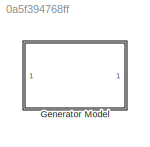
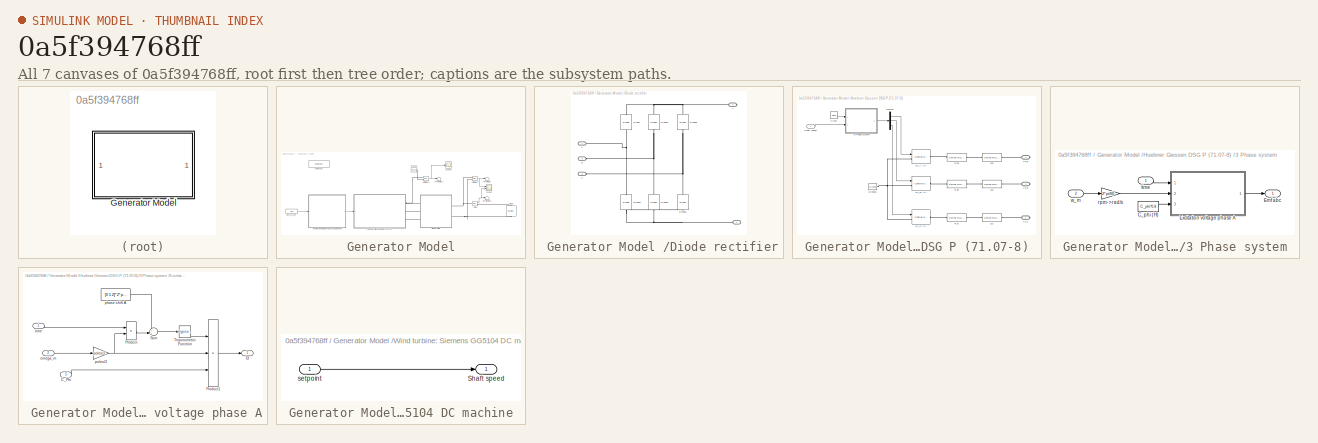
[diagram: thumbnail index - all 7 canvases of the model, root first then tree order]
MODEL slx_0a5f394768ff
KIND model
CONFIG AbsTol = auto
CONFIG EnableMultiTasking = on
CONFIG FixedStep = 1e-6
CONFIG InitFcn = Rs=0.42;                \nLs=0.96e-3;            \nC_phi=92.1952e-3;     \npoles=8;               \nRload=15;
CONFIG MaxStep = 1e-5
CONFIG MinStep = auto
CONFIG RelTol = 1e-5
CONFIG SampleTimeConstraint = Unconstrained
CONFIG SolverName = ode15s
CONFIG StartTime = 0.0
CONFIG StopTime = 0.2
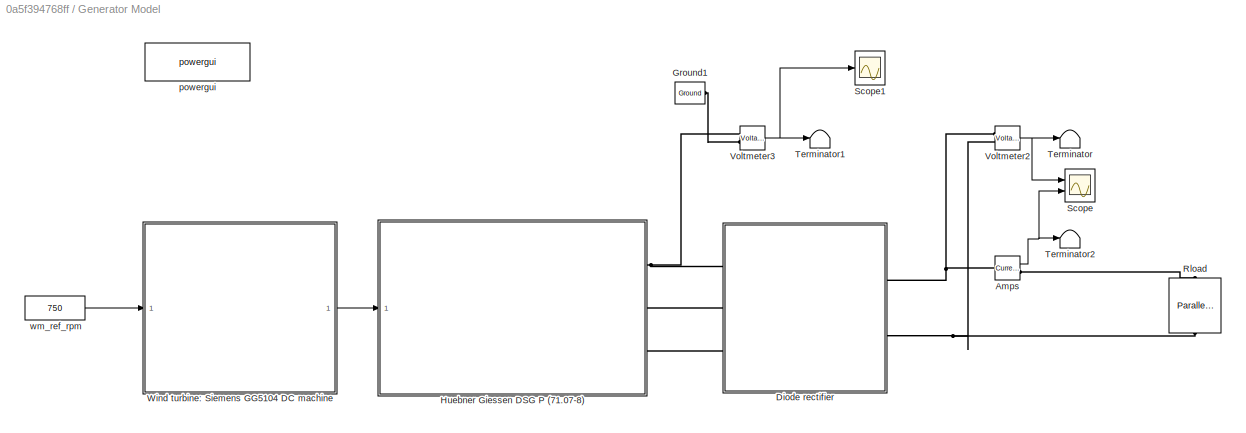
BLOCK [SubSystem]  Generator Model 
  Ports = []
BLOCK [Reference]  Generator Model /Amps  REF=spsCurrentMeasurementLib/Current Measurement
  Ports = [0, 1, 0, 0, 0, 1, 1]
  SourceBlock = spsCurrentMeasurementLib/Current Measurement
  SourceType = Current Measurement
  UserDataPersistent = on
BLOCK [SubSystem]  Generator Model /Diode rectifier
  Ports = [0, 0, 0, 0, 0, 3, 2]
BLOCK [PMIOPort]  Generator Model /Diode rectifier/+
  NameLocation = top
  Port = 2
  Side = Right
BLOCK [PMIOPort]  Generator Model /Diode rectifier/-
  NameLocation = top
  Port = 4
  Side = Right
BLOCK [PMIOPort]  Generator Model /Diode rectifier/A
  Side = Left
BLOCK [PMIOPort]  Generator Model /Diode rectifier/B
  Port = 3
  Side = Left
BLOCK [PMIOPort]  Generator Model /Diode rectifier/C
  Port = 5
  Side = Left
BLOCK [Reference]  Generator Model /Diode rectifier/Diode  REF=spsDiodeLib/Diode
  NameLocation = right
  Ports = [0, 0, 0, 0, 0, 1, 1]
  SourceBlock = spsDiodeLib/Diode
  SourceType = Diode
BLOCK [Reference]  Generator Model /Diode rectifier/Diode1  REF=spsDiodeLib/Diode
  NameLocation = right
  Ports = [0, 0, 0, 0, 0, 1, 1]
  SourceBlock = spsDiodeLib/Diode
  SourceType = Diode
BLOCK [Reference]  Generator Model /Diode rectifier/Diode2  REF=spsDiodeLib/Diode
  NameLocation = right
  Ports = [0, 0, 0, 0, 0, 1, 1]
  SourceBlock = spsDiodeLib/Diode
  SourceType = Diode
BLOCK [Reference]  Generator Model /Diode rectifier/Diode3  REF=spsDiodeLib/Diode
  NameLocation = right
  Ports = [0, 0, 0, 0, 0, 1, 1]
  SourceBlock = spsDiodeLib/Diode
  SourceType = Diode
BLOCK [Reference]  Generator Model /Diode rectifier/Diode4  REF=spsDiodeLib/Diode
  NameLocation = right
  Ports = [0, 0, 0, 0, 0, 1, 1]
  SourceBlock = spsDiodeLib/Diode
  SourceType = Diode
BLOCK [Reference]  Generator Model /Diode rectifier/Diode5  REF=spsDiodeLib/Diode
  NameLocation = right
  Ports = [0, 0, 0, 0, 0, 1, 1]
  SourceBlock = spsDiodeLib/Diode
  SourceType = Diode
BLOCK [Reference]  Generator Model /Ground1  REF=spsGroundLib/Ground
  Ports = [0, 0, 0, 0, 0, 1]
  SourceBlock = spsGroundLib/Ground
  SourceType = Ground
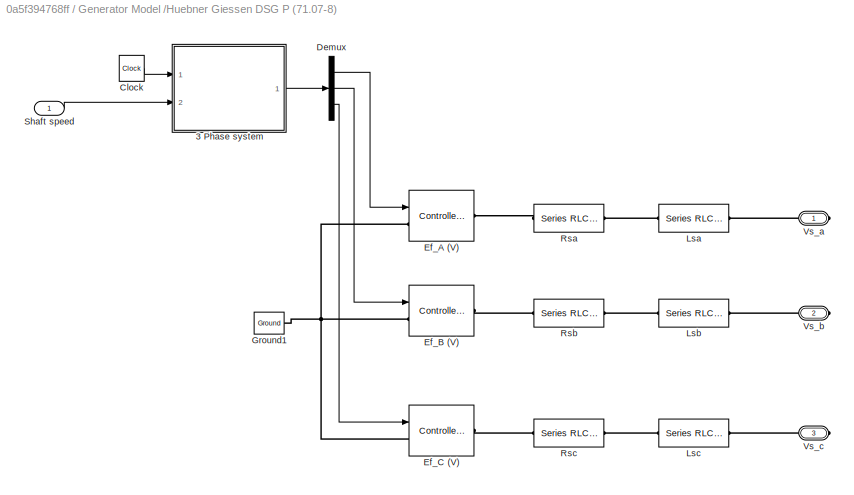
BLOCK [SubSystem]  Generator Model /Huebner Giessen DSG P (71.07-8) 
  Ports = [1, 0, 0, 0, 0, 0, 3]
BLOCK [SubSystem]  Generator Model /Huebner Giessen DSG P (71.07-8) /3 Phase system 
  Ports = [2, 1]
BLOCK [Constant]  Generator Model /Huebner Giessen DSG P (71.07-8) /3 Phase system /C_phi (H)
  Value = C_phi*0.8
  VectorParams1D = off
BLOCK [Outport]  Generator Model /Huebner Giessen DSG P (71.07-8) /3 Phase system /Emf abc 
BLOCK [SubSystem]  Generator Model /Huebner Giessen DSG P (71.07-8) /3 Phase system /Excitation voltage phase A
  Ports = [3, 1]
BLOCK [Inport]  Generator Model /Huebner Giessen DSG P (71.07-8) /3 Phase system /Excitation voltage phase A/C_Phi
  Port = 3
BLOCK [Outport]  Generator Model /Huebner Giessen DSG P (71.07-8) /3 Phase system /Excitation voltage phase A/Ef
BLOCK [Product]  Generator Model /Huebner Giessen DSG P (71.07-8) /3 Phase system /Excitation voltage phase A/Product
  Ports = [2, 1]
  RndMeth = Zero
BLOCK [Product]  Generator Model /Huebner Giessen DSG P (71.07-8) /3 Phase system /Excitation voltage phase A/Product1
  Inputs = 3
  Ports = [3, 1]
  RndMeth = Zero
BLOCK [Sum]  Generator Model /Huebner Giessen DSG P (71.07-8) /3 Phase system /Excitation voltage phase A/Sum
  Inputs = ++|
  Ports = [2, 1]
BLOCK [Trigonometry]  Generator Model /Huebner Giessen DSG P (71.07-8) /3 Phase system /Excitation voltage phase A/Trigonometric Function
  Ports = [1, 1]
BLOCK [Inport]  Generator Model /Huebner Giessen DSG P (71.07-8) /3 Phase system /Excitation voltage phase A/omega_m
  Port = 2
BLOCK [Constant]  Generator Model /Huebner Giessen DSG P (71.07-8) /3 Phase system /Excitation voltage phase A/phase shift A
  Value = [0 1 2]*2*pi/3
BLOCK [Gain]  Generator Model /Huebner Giessen DSG P (71.07-8) /3 Phase system /Excitation voltage phase A/poles//2
  Gain = poles/2
BLOCK [Inport]  Generator Model /Huebner Giessen DSG P (71.07-8) /3 Phase system /Excitation voltage phase A/time
BLOCK [Gain]  Generator Model /Huebner Giessen DSG P (71.07-8) /3 Phase system /rpm->rad//s
  Gain = 2*pi/60
BLOCK [Inport]  Generator Model /Huebner Giessen DSG P (71.07-8) /3 Phase system /time
BLOCK [Inport]  Generator Model /Huebner Giessen DSG P (71.07-8) /3 Phase system /w_m
  Port = 2
BLOCK [Clock]  Generator Model /Huebner Giessen DSG P (71.07-8) /Clock
BLOCK [Demux]  Generator Model /Huebner Giessen DSG P (71.07-8) /Demux
  Outputs = 3
  Ports = [1, 3]
BLOCK [Reference]  Generator Model /Huebner Giessen DSG P (71.07-8) /Ef_A (V)  REF=spsControlledVoltageSourceLib/Controlled Voltage Source
  Ports = [1, 0, 0, 0, 0, 1, 1]
  SourceBlock = spsControlledVoltageSourceLib/Controlled Voltage Source
  SourceType = Controlled Voltage Source
BLOCK [Reference]  Generator Model /Huebner Giessen DSG P (71.07-8) /Ef_B (V)  REF=spsControlledVoltageSourceLib/Controlled Voltage Source
  Ports = [1, 0, 0, 0, 0, 1, 1]
  SourceBlock = spsControlledVoltageSourceLib/Controlled Voltage Source
  SourceType = Controlled Voltage Source
BLOCK [Reference]  Generator Model /Huebner Giessen DSG P (71.07-8) /Ef_C (V)  REF=spsControlledVoltageSourceLib/Controlled Voltage Source
  Ports = [1, 0, 0, 0, 0, 1, 1]
  SourceBlock = spsControlledVoltageSourceLib/Controlled Voltage Source
  SourceType = Controlled Voltage Source
BLOCK [Reference]  Generator Model /Huebner Giessen DSG P (71.07-8) /Ground1  REF=spsGroundLib/Ground
  Ports = [0, 0, 0, 0, 0, 1]
  SourceBlock = spsGroundLib/Ground
  SourceType = Ground
BLOCK [Reference]  Generator Model /Huebner Giessen DSG P (71.07-8) /Lsa  REF=spsSeriesRLCBranchLib/Series RLC Branch
  Ports = [0, 0, 0, 0, 0, 1, 1]
  SourceBlock = spsSeriesRLCBranchLib/Series RLC Branch
  SourceType = Series RLC Branch
BLOCK [Reference]  Generator Model /Huebner Giessen DSG P (71.07-8) /Lsb  REF=spsSeriesRLCBranchLib/Series RLC Branch
  Ports = [0, 0, 0, 0, 0, 1, 1]
  SourceBlock = spsSeriesRLCBranchLib/Series RLC Branch
  SourceType = Series RLC Branch
BLOCK [Reference]  Generator Model /Huebner Giessen DSG P (71.07-8) /Lsc  REF=spsSeriesRLCBranchLib/Series RLC Branch
  Ports = [0, 0, 0, 0, 0, 1, 1]
  SourceBlock = spsSeriesRLCBranchLib/Series RLC Branch
  SourceType = Series RLC Branch
BLOCK [Reference]  Generator Model /Huebner Giessen DSG P (71.07-8) /Rsa  REF=spsSeriesRLCBranchLib/Series RLC Branch
  Ports = [0, 0, 0, 0, 0, 1, 1]
  SourceBlock = spsSeriesRLCBranchLib/Series RLC Branch
  SourceType = Series RLC Branch
BLOCK [Reference]  Generator Model /Huebner Giessen DSG P (71.07-8) /Rsb  REF=spsSeriesRLCBranchLib/Series RLC Branch
  Ports = [0, 0, 0, 0, 0, 1, 1]
  SourceBlock = spsSeriesRLCBranchLib/Series RLC Branch
  SourceType = Series RLC Branch
BLOCK [Reference]  Generator Model /Huebner Giessen DSG P (71.07-8) /Rsc  REF=spsSeriesRLCBranchLib/Series RLC Branch
  Ports = [0, 0, 0, 0, 0, 1, 1]
  SourceBlock = spsSeriesRLCBranchLib/Series RLC Branch
  SourceType = Series RLC Branch
BLOCK [Inport]  Generator Model /Huebner Giessen DSG P (71.07-8) /Shaft speed
BLOCK [PMIOPort]  Generator Model /Huebner Giessen DSG P (71.07-8) /Vs_a
  Side = Right
BLOCK [PMIOPort]  Generator Model /Huebner Giessen DSG P (71.07-8) /Vs_b
  Port = 2
  Side = Right
BLOCK [PMIOPort]  Generator Model /Huebner Giessen DSG P (71.07-8) /Vs_c
  Port = 3
  Side = Right
BLOCK [Reference]  Generator Model /Rload  REF=spsParallelRLCBranchLib/Parallel RLC Branch
  AttributesFormatString = \n
  NameLocation = right
  Ports = [0, 0, 0, 0, 0, 1, 1]
  SourceBlock = spsParallelRLCBranchLib/Parallel RLC Branch
  SourceType = Parallel RLC Branch
BLOCK [Scope]  Generator Model /Scope
  Floating = off
  NumInputPorts = 2
  Ports = [2]
  ScopeSpecificationString = Simulink.scopes.TimeScopeBlockCfg('CurrentConfiguration', extmgr.ConfigurationSet(extmgr.Configuration('Core','General UI',true),extmgr.Configuration('Core','Source UI',true),extmgr.Configuration('Sources','WiredSimulink',true),extmgr.Configuration('Visuals','Time Domain',true,'SerializedDisplays',{struct('MinYLimReal','-2.45226','MaxYLimReal','22.07031','YLabelReal','','MinYLimMag','0.00000','Max...<+1341ch>
BLOCK [Scope]  Generator Model /Scope1
  Floating = off
  NumInputPorts = 1
  Ports = [1]
  ScopeSpecificationString = Simulink.scopes.TimeScopeBlockCfg('CurrentConfiguration', extmgr.ConfigurationSet(extmgr.Configuration('Core','General UI',true),extmgr.Configuration('Core','Source UI',true),extmgr.Configuration('Sources','WiredSimulink',true),extmgr.Configuration('Visuals','Time Domain',true,'SerializedDisplays',{struct('MinYLimReal','-2.45226','MaxYLimReal','22.07031','YLabelReal','','MinYLimMag','0.00000','Max...<+1341ch>
BLOCK [Terminator]  Generator Model /Terminator
BLOCK [Terminator]  Generator Model /Terminator1
BLOCK [Terminator]  Generator Model /Terminator2
BLOCK [Reference]  Generator Model /Voltmeter2  REF=spsVoltageMeasurementLib/Voltage Measurement
  Ports = [0, 1, 0, 0, 0, 2]
  SourceBlock = spsVoltageMeasurementLib/Voltage Measurement
  SourceType = Voltage Measurement
  UserDataPersistent = on
BLOCK [Reference]  Generator Model /Voltmeter3  REF=spsVoltageMeasurementLib/Voltage Measurement
  Ports = [0, 1, 0, 0, 0, 2]
  SourceBlock = spsVoltageMeasurementLib/Voltage Measurement
  SourceType = Voltage Measurement
  UserDataPersistent = on
BLOCK [SubSystem]  Generator Model /Wind turbine: Siemens GG5104 DC machine 
  Ports = [1, 1]
BLOCK [Outport]  Generator Model /Wind turbine: Siemens GG5104 DC machine /Shaft speed
BLOCK [Inport]  Generator Model /Wind turbine: Siemens GG5104 DC machine /setpoint
BLOCK [Reference]  Generator Model /powergui  REF=spspowerguiLib/powergui
  Ports = []
  Priority = 1
  SourceBlock = spspowerguiLib/powergui
  SourceType = PSB option menu block
BLOCK [Constant]  Generator Model /wm_ref_rpm
  Value = 750
NET  Generator Model /Amps:1 ->  Generator Model /Scope:2,  Generator Model /Terminator2:1
LINE  Generator Model /Huebner Giessen DSG P (71.07-8) /3 Phase system /C_phi (H):1 ->  Generator Model /Huebner Giessen DSG P (71.07-8) /3 Phase system /Excitation voltage phase A:3
LINE  Generator Model /Huebner Giessen DSG P (71.07-8) /3 Phase system /Excitation voltage phase A/C_Phi:1 ->  Generator Model /Huebner Giessen DSG P (71.07-8) /3 Phase system /Excitation voltage phase A/Product1:3
LINE  Generator Model /Huebner Giessen DSG P (71.07-8) /3 Phase system /Excitation voltage phase A/Product1:1 ->  Generator Model /Huebner Giessen DSG P (71.07-8) /3 Phase system /Excitation voltage phase A/Ef:1
LINE  Generator Model /Huebner Giessen DSG P (71.07-8) /3 Phase system /Excitation voltage phase A/Product:1 ->  Generator Model /Huebner Giessen DSG P (71.07-8) /3 Phase system /Excitation voltage phase A/Sum:2
LINE  Generator Model /Huebner Giessen DSG P (71.07-8) /3 Phase system /Excitation voltage phase A/Sum:1 ->  Generator Model /Huebner Giessen DSG P (71.07-8) /3 Phase system /Excitation voltage phase A/Trigonometric Function:1
LINE  Generator Model /Huebner Giessen DSG P (71.07-8) /3 Phase system /Excitation voltage phase A/Trigonometric Function:1 ->  Generator Model /Huebner Giessen DSG P (71.07-8) /3 Phase system /Excitation voltage phase A/Product1:1
LINE  Generator Model /Huebner Giessen DSG P (71.07-8) /3 Phase system /Excitation voltage phase A/omega_m:1 ->  Generator Model /Huebner Giessen DSG P (71.07-8) /3 Phase system /Excitation voltage phase A/poles//2:1
LINE  Generator Model /Huebner Giessen DSG P (71.07-8) /3 Phase system /Excitation voltage phase A/phase shift A:1 ->  Generator Model /Huebner Giessen DSG P (71.07-8) /3 Phase system /Excitation voltage phase A/Sum:1
NET  Generator Model /Huebner Giessen DSG P (71.07-8) /3 Phase system /Excitation voltage phase A/poles//2:1 ->  Generator Model /Huebner Giessen DSG P (71.07-8) /3 Phase system /Excitation voltage phase A/Product1:2,  Generator Model /Huebner Giessen DSG P (71.07-8) /3 Phase system /Excitation voltage phase A/Product:2
LINE  Generator Model /Huebner Giessen DSG P (71.07-8) /3 Phase system /Excitation voltage phase A/time:1 ->  Generator Model /Huebner Giessen DSG P (71.07-8) /3 Phase system /Excitation voltage phase A/Product:1
LINE  Generator Model /Huebner Giessen DSG P (71.07-8) /3 Phase system /Excitation voltage phase A:1 ->  Generator Model /Huebner Giessen DSG P (71.07-8) /3 Phase system /Emf abc :1
LINE  Generator Model /Huebner Giessen DSG P (71.07-8) /3 Phase system /rpm->rad//s:1 ->  Generator Model /Huebner Giessen DSG P (71.07-8) /3 Phase system /Excitation voltage phase A:2
LINE  Generator Model /Huebner Giessen DSG P (71.07-8) /3 Phase system /time:1 ->  Generator Model /Huebner Giessen DSG P (71.07-8) /3 Phase system /Excitation voltage phase A:1
LINE  Generator Model /Huebner Giessen DSG P (71.07-8) /3 Phase system /w_m:1 ->  Generator Model /Huebner Giessen DSG P (71.07-8) /3 Phase system /rpm->rad//s:1
LINE  Generator Model /Huebner Giessen DSG P (71.07-8) /3 Phase system :1 ->  Generator Model /Huebner Giessen DSG P (71.07-8) /Demux:1
LINE  Generator Model /Huebner Giessen DSG P (71.07-8) /Clock:1 ->  Generator Model /Huebner Giessen DSG P (71.07-8) /3 Phase system :1
LINE  Generator Model /Huebner Giessen DSG P (71.07-8) /Demux:1 ->  Generator Model /Huebner Giessen DSG P (71.07-8) /Ef_A (V):1
LINE  Generator Model /Huebner Giessen DSG P (71.07-8) /Demux:2 ->  Generator Model /Huebner Giessen DSG P (71.07-8) /Ef_B (V):1
LINE  Generator Model /Huebner Giessen DSG P (71.07-8) /Demux:3 ->  Generator Model /Huebner Giessen DSG P (71.07-8) /Ef_C (V):1
LINE  Generator Model /Huebner Giessen DSG P (71.07-8) /Shaft speed:1 ->  Generator Model /Huebner Giessen DSG P (71.07-8) /3 Phase system :2
NET  Generator Model /Voltmeter2:1 ->  Generator Model /Scope:1,  Generator Model /Terminator:1
NET  Generator Model /Voltmeter3:1 ->  Generator Model /Scope1:1,  Generator Model /Terminator1:1
LINE  Generator Model /Wind turbine: Siemens GG5104 DC machine /setpoint:1 ->  Generator Model /Wind turbine: Siemens GG5104 DC machine /Shaft speed:1
LINE  Generator Model /Wind turbine: Siemens GG5104 DC machine :1 ->  Generator Model /Huebner Giessen DSG P (71.07-8) :1
LINE  Generator Model /wm_ref_rpm:1 ->  Generator Model /Wind turbine: Siemens GG5104 DC machine :1
PNET net1:  Generator Model /Amps:LConn1 --  Generator Model /Diode rectifier:RConn1 --  Generator Model /Voltmeter2:LConn1
PLINE  Generator Model /Amps:RConn1 --  Generator Model /Rload:LConn1
PNET net2:  Generator Model /Diode rectifier/+:RConn1 --  Generator Model /Diode rectifier/Diode1:RConn1 --  Generator Model /Diode rectifier/Diode2:RConn1 --  Generator Model /Diode rectifier/Diode:RConn1
PNET net3:  Generator Model /Diode rectifier/-:RConn1 --  Generator Model /Diode rectifier/Diode3:LConn1 --  Generator Model /Diode rectifier/Diode4:LConn1 --  Generator Model /Diode rectifier/Diode5:LConn1
PNET net4:  Generator Model /Diode rectifier/A:RConn1 --  Generator Model /Diode rectifier/Diode3:RConn1 --  Generator Model /Diode rectifier/Diode:LConn1
PNET net5:  Generator Model /Diode rectifier/B:RConn1 --  Generator Model /Diode rectifier/Diode1:LConn1 --  Generator Model /Diode rectifier/Diode4:RConn1
PNET net6:  Generator Model /Diode rectifier/C:RConn1 --  Generator Model /Diode rectifier/Diode2:LConn1 --  Generator Model /Diode rectifier/Diode5:RConn1
PNET net7:  Generator Model /Diode rectifier:LConn1 --  Generator Model /Huebner Giessen DSG P (71.07-8) :RConn1 --  Generator Model /Voltmeter3:LConn1
PLINE  Generator Model /Diode rectifier:LConn2 --  Generator Model /Huebner Giessen DSG P (71.07-8) :RConn2
PLINE  Generator Model /Diode rectifier:LConn3 --  Generator Model /Huebner Giessen DSG P (71.07-8) :RConn3
PNET net8:  Generator Model /Diode rectifier:RConn2 --  Generator Model /Rload:RConn1 --  Generator Model /Voltmeter2:LConn2
PLINE  Generator Model /Ground1:LConn1 --  Generator Model /Voltmeter3:LConn2
PNET net9:  Generator Model /Huebner Giessen DSG P (71.07-8) /Ef_A (V):LConn1 --  Generator Model /Huebner Giessen DSG P (71.07-8) /Ef_B (V):LConn1 --  Generator Model /Huebner Giessen DSG P (71.07-8) /Ef_C (V):LConn1 --  Generator Model /Huebner Giessen DSG P (71.07-8) /Ground1:LConn1
PLINE  Generator Model /Huebner Giessen DSG P (71.07-8) /Ef_A (V):RConn1 --  Generator Model /Huebner Giessen DSG P (71.07-8) /Rsa:LConn1
PLINE  Generator Model /Huebner Giessen DSG P (71.07-8) /Ef_B (V):RConn1 --  Generator Model /Huebner Giessen DSG P (71.07-8) /Rsb:LConn1
PLINE  Generator Model /Huebner Giessen DSG P (71.07-8) /Ef_C (V):RConn1 --  Generator Model /Huebner Giessen DSG P (71.07-8) /Rsc:LConn1
PLINE  Generator Model /Huebner Giessen DSG P (71.07-8) /Lsa:LConn1 --  Generator Model /Huebner Giessen DSG P (71.07-8) /Rsa:RConn1
PLINE  Generator Model /Huebner Giessen DSG P (71.07-8) /Lsa:RConn1 --  Generator Model /Huebner Giessen DSG P (71.07-8) /Vs_a:RConn1
PLINE  Generator Model /Huebner Giessen DSG P (71.07-8) /Lsb:LConn1 --  Generator Model /Huebner Giessen DSG P (71.07-8) /Rsb:RConn1
PLINE  Generator Model /Huebner Giessen DSG P (71.07-8) /Lsb:RConn1 --  Generator Model /Huebner Giessen DSG P (71.07-8) /Vs_b:RConn1
PLINE  Generator Model /Huebner Giessen DSG P (71.07-8) /Lsc:LConn1 --  Generator Model /Huebner Giessen DSG P (71.07-8) /Rsc:RConn1
PLINE  Generator Model /Huebner Giessen DSG P (71.07-8) /Lsc:RConn1 --  Generator Model /Huebner Giessen DSG P (71.07-8) /Vs_c:RConn1
note: NET lines group one-source signal fan-out (src -> all destinations, sorted); 1:1 wires keep LINE; PNET lines group multi-terminal physical nets as a canonical sorted terminal list (undirected conserving connections); 2-terminal nets keep the pairwise PLINE form
